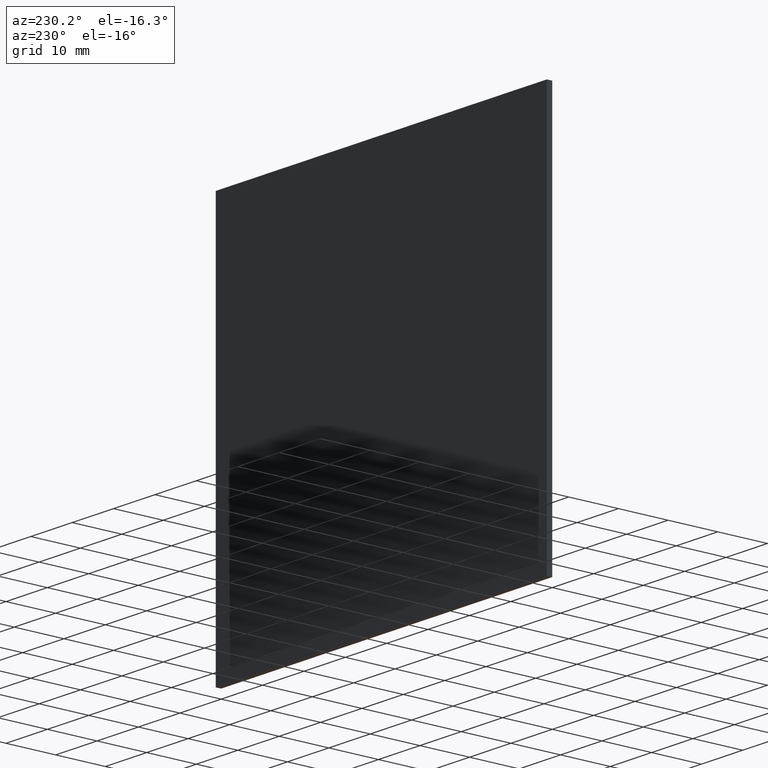
[diagram: clean part render]
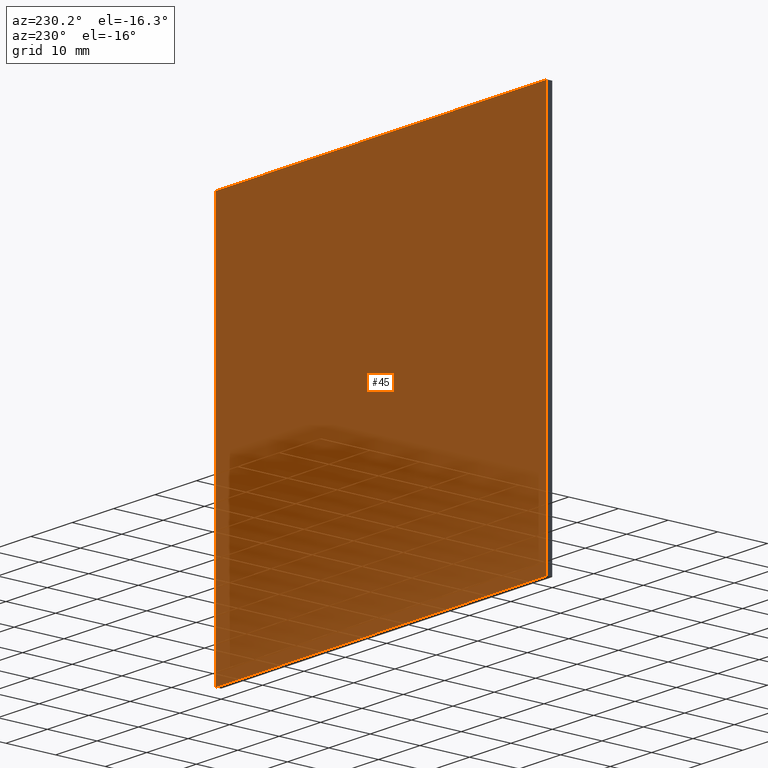
[diagram: same view with one face highlighted and labeled with its STEP entity id]
A machine part, auxiliary view. The second image highlights one B-rep face of the part: STEP entity #45.
In plain terms, the highlighted planar face has unit normal (0, 1, -0).
Its self-contained STEP definition (entity closure, byte-faithful):
#1 = LINE ( 'NONE', #183, #92 ) ;
#10 = EDGE_CURVE ( 'NONE', #187, #162, #81, .T. ) ;
#18 = DIRECTION ( 'NONE',  ( -1.000000000000000000, -0.0000000000000000000, -0.0000000000000000000 ) ) ;
#23 = DIRECTION ( 'NONE',  ( 1.000000000000000000, 0.0000000000000000000, 0.0000000000000000000 ) ) ;
#41 = VERTEX_POINT ( 'NONE', #194 ) ;
#42 = VECTOR ( 'NONE', #60, 1000.000000000000000 ) ;
#45 = ADVANCED_FACE ( 'NONE', ( #123 ), #184, .T. ) ;
#57 = VECTOR ( 'NONE', #23, 1000.000000000000000 ) ;
#60 = DIRECTION ( 'NONE',  ( 8.673617379884035500E-017, -0.0000000000000000000, -1.000000000000000000 ) ) ;
#77 = VECTOR ( 'NONE', #145, 1000.000000000000000 ) ;
#81 = LINE ( 'NONE', #191, #77 ) ;
#92 = VECTOR ( 'NONE', #18, 1000.000000000000000 ) ;
#96 = CARTESIAN_POINT ( 'NONE',  ( 40.00000000000000000, 1.100000000000000100, -40.00000000000000700 ) ) ;
#98 = LINE ( 'NONE', #96, #42 ) ;
#99 = CARTESIAN_POINT ( 'NONE',  ( 40.00000000000000000, 1.100000000000000100, -40.00000000000000700 ) ) ;
#100 = EDGE_CURVE ( 'NONE', #41, #153, #98, .T. ) ;
#112 = AXIS2_PLACEMENT_3D ( 'NONE', #158, #146, #188 ) ;
#117 = CARTESIAN_POINT ( 'NONE',  ( -40.00000000000000700, 1.100000000000000100, 39.99999999999999300 ) ) ;
#123 = FACE_OUTER_BOUND ( 'NONE', #180, .T. ) ;
#124 = ORIENTED_EDGE ( 'NONE', *, *, #155, .T. ) ;
#139 = CARTESIAN_POINT ( 'NONE',  ( -40.00000000000001400, 1.100000000000000100, -40.00000000000000700 ) ) ;
#141 = EDGE_CURVE ( 'NONE', #153, #187, #1, .T. ) ;
#145 = DIRECTION ( 'NONE',  ( 8.673617379884035500E-017, 0.0000000000000000000, 1.000000000000000000 ) ) ;
#146 = DIRECTION ( 'NONE',  ( 0.0000000000000000000, 1.000000000000000000, -0.0000000000000000000 ) ) ;
#153 = VERTEX_POINT ( 'NONE', #99 ) ;
#155 = EDGE_CURVE ( 'NONE', #162, #41, #175, .T. ) ;
#158 = CARTESIAN_POINT ( 'NONE',  ( 0.0000000000000000000, 1.100000000000000100, 0.0000000000000000000 ) ) ;
#160 = ORIENTED_EDGE ( 'NONE', *, *, #141, .T. ) ;
#161 = ORIENTED_EDGE ( 'NONE', *, *, #10, .T. ) ;
#162 = VERTEX_POINT ( 'NONE', #117 ) ;
#173 = ORIENTED_EDGE ( 'NONE', *, *, #100, .T. ) ;
#175 = LINE ( 'NONE', #195, #57 ) ;
#180 = EDGE_LOOP ( 'NONE', ( #173, #160, #161, #124 ) ) ;
#183 = CARTESIAN_POINT ( 'NONE',  ( -40.00000000000001400, 1.100000000000000100, -40.00000000000000700 ) ) ;
#184 = PLANE ( 'NONE',  #112 ) ;
#187 = VERTEX_POINT ( 'NONE', #139 ) ;
#188 = DIRECTION ( 'NONE',  ( 0.0000000000000000000, 0.0000000000000000000, 1.000000000000000000 ) ) ;
#191 = CARTESIAN_POINT ( 'NONE',  ( -40.00000000000001400, 1.100000000000000100, -40.00000000000000700 ) ) ;
#194 = CARTESIAN_POINT ( 'NONE',  ( 39.99999999999999300, 1.100000000000000100, 39.99999999999999300 ) ) ;
#195 = CARTESIAN_POINT ( 'NONE',  ( -40.00000000000000700, 1.100000000000000100, 39.99999999999999300 ) ) ;